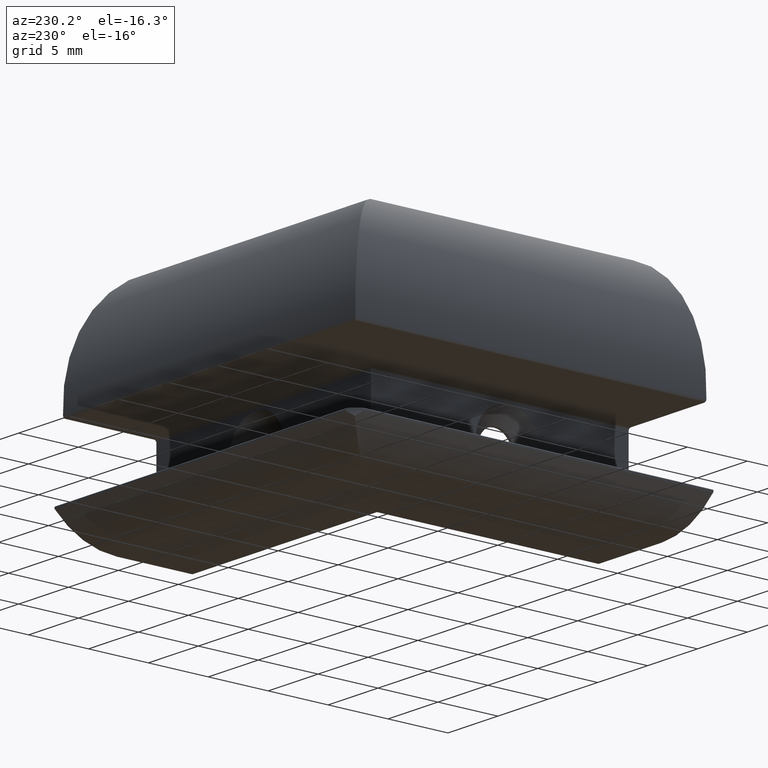
[diagram: clean part render]
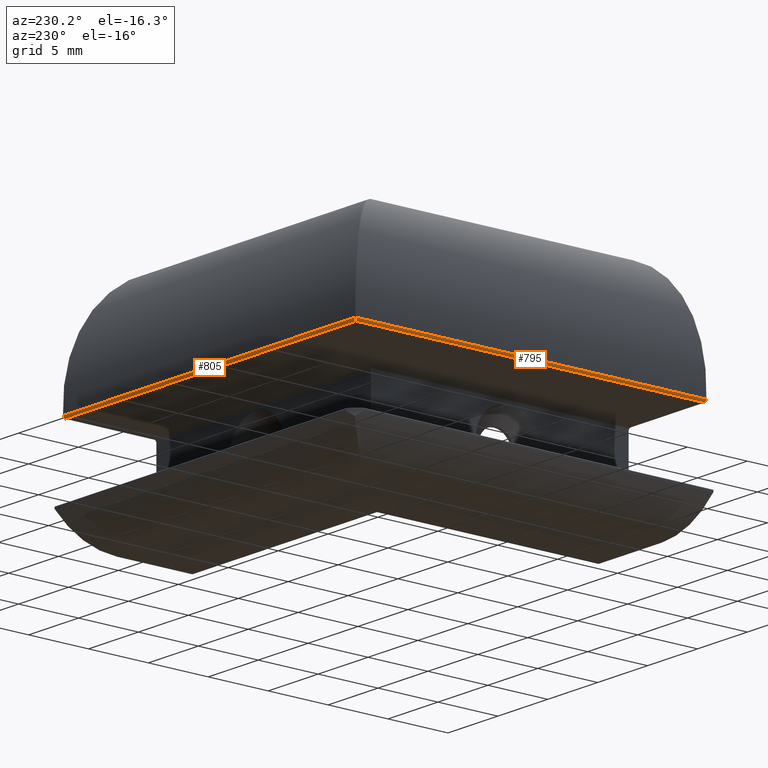
[diagram: same view with one multi-face feature highlighted, each face labeled with its STEP entity id]
A machine part, auxiliary view. The highlighted faces form ONE feature: a constant-radius fillet chain: 2 tangent blend faces with common blend radius 0.2 mm. The faces share edges in the B-rep.
Their STEP definitions:
[1] entity #795 (Cylinder):
#28=ELLIPSE('',#892,0.282842712474491,0.199999999999818);
#60=CYLINDRICAL_SURFACE('',#891,0.199999999999818);
#96=FACE_OUTER_BOUND('',#143,.T.);
#143=EDGE_LOOP('',(#647,#648,#649,#650));
#206=LINE('',#1318,#275);
#207=LINE('',#1319,#276);
#275=VECTOR('',#1079,10.);
#276=VECTOR('',#1080,10.);
#323=CIRCLE('',#871,0.199999999999818);
#366=VERTEX_POINT('',#1249);
#367=VERTEX_POINT('',#1251);
#388=VERTEX_POINT('',#1315);
#389=VERTEX_POINT('',#1316);
#453=EDGE_CURVE('',#366,#367,#323,.T.);
#486=EDGE_CURVE('',#388,#389,#28,.T.);
#487=EDGE_CURVE('',#388,#367,#206,.T.);
#488=EDGE_CURVE('',#366,#389,#207,.T.);
#647=ORIENTED_EDGE('',*,*,#486,.F.);
#648=ORIENTED_EDGE('',*,*,#487,.T.);
#649=ORIENTED_EDGE('',*,*,#453,.F.);
#650=ORIENTED_EDGE('',*,*,#488,.T.);
#795=ADVANCED_FACE('',(#96),#60,.T.);
#871=AXIS2_PLACEMENT_3D('',#1252,#1013,#1014);
#891=AXIS2_PLACEMENT_3D('',#1314,#1075,#1076);
#892=AXIS2_PLACEMENT_3D('',#1317,#1077,#1078);
#1013=DIRECTION('center_axis',(0.,-1.,0.));
#1014=DIRECTION('ref_axis',(-0.998791972157501,0.,-0.0491385424461257));
#1075=DIRECTION('center_axis',(0.,1.,0.));
#1076=DIRECTION('ref_axis',(-0.998791972157501,0.,-0.0491385424461257));
#1077=DIRECTION('center_axis',(0.707106781186871,0.707106781186224,0.));
#1078=DIRECTION('ref_axis',(-0.707106781186224,0.707106781186871,0.));
#1079=DIRECTION('',(0.,-1.,0.));
#1080=DIRECTION('',(0.,1.,0.));
#1249=CARTESIAN_POINT('',(-4.79607980792638,-9.25,-1.40982770848975));
#1251=CARTESIAN_POINT('',(-4.59632141349506,-9.25,-1.60000000000035));
#1252=CARTESIAN_POINT('Origin',(-4.59632141349506,-9.25,-1.40000000000053));
#1314=CARTESIAN_POINT('Origin',(-4.59632141349506,-9.25,-1.40000000000053));
#1315=CARTESIAN_POINT('',(-4.59632141349506,19.8463214135177,-1.60000000000021));
#1316=CARTESIAN_POINT('',(-4.79607980792637,20.0460798079492,-1.40982770848975));
#1317=CARTESIAN_POINT('Origin',(-4.59632141349506,19.8463214135177,-1.40000000000053));
#1318=CARTESIAN_POINT('',(-4.59632141349506,-9.25,-1.60000000000023));
#1319=CARTESIAN_POINT('',(-4.79607980792638,-9.25,-1.40982770848975));
[2] entity #805 (Cylinder):
#28=ELLIPSE('',#892,0.282842712474491,0.199999999999818);
#67=CYLINDRICAL_SURFACE('',#906,0.2);
#106=FACE_OUTER_BOUND('',#154,.T.);
#154=EDGE_LOOP('',(#693,#694,#695,#696));
#220=LINE('',#1385,#289);
#222=LINE('',#1389,#291);
#289=VECTOR('',#1119,10.);
#291=VECTOR('',#1123,10.);
#334=CIRCLE('',#907,0.2);
#388=VERTEX_POINT('',#1315);
#389=VERTEX_POINT('',#1316);
#401=VERTEX_POINT('',#1384);
#402=VERTEX_POINT('',#1388);
#486=EDGE_CURVE('',#388,#389,#28,.T.);
#508=EDGE_CURVE('',#401,#388,#220,.T.);
#510=EDGE_CURVE('',#402,#389,#222,.T.);
#511=EDGE_CURVE('',#401,#402,#334,.T.);
#693=ORIENTED_EDGE('',*,*,#486,.T.);
#694=ORIENTED_EDGE('',*,*,#510,.F.);
#695=ORIENTED_EDGE('',*,*,#511,.F.);
#696=ORIENTED_EDGE('',*,*,#508,.T.);
#805=ADVANCED_FACE('',(#106),#67,.T.);
#892=AXIS2_PLACEMENT_3D('',#1317,#1077,#1078);
#906=AXIS2_PLACEMENT_3D('',#1387,#1121,#1122);
#907=AXIS2_PLACEMENT_3D('',#1390,#1124,#1125);
#1077=DIRECTION('center_axis',(0.707106781186871,0.707106781186224,0.));
#1078=DIRECTION('ref_axis',(-0.707106781186224,0.707106781186871,0.));
#1119=DIRECTION('',(-1.,-3.8827471899459E-16,0.));
#1121=DIRECTION('center_axis',(-1.,-3.8827471899459E-16,0.));
#1122=DIRECTION('ref_axis',(0.,0.,-1.));
#1123=DIRECTION('',(-1.,-3.8827471899459E-16,0.));
#1124=DIRECTION('center_axis',(1.,3.70074341541719E-16,0.));
#1125=DIRECTION('ref_axis',(0.,0.,-1.));
#1315=CARTESIAN_POINT('',(-4.59632141349506,19.8463214135177,-1.60000000000021));
#1316=CARTESIAN_POINT('',(-4.79607980792637,20.0460798079492,-1.40982770848975));
#1317=CARTESIAN_POINT('Origin',(-4.59632141349506,19.8463214135177,-1.40000000000053));
#1384=CARTESIAN_POINT('',(24.5,19.8463214135177,-1.60000000000021));
#1385=CARTESIAN_POINT('',(24.5,19.8463214135177,-1.60000000000021));
#1387=CARTESIAN_POINT('Origin',(24.5,19.8463214135177,-1.40000000000021));
#1388=CARTESIAN_POINT('',(24.5,20.0460798079492,-1.40982770848918));
#1389=CARTESIAN_POINT('',(24.5,20.0460798079492,-1.40982770848918));
#1390=CARTESIAN_POINT('Origin',(24.5,19.8463214135177,-1.40000000000021));